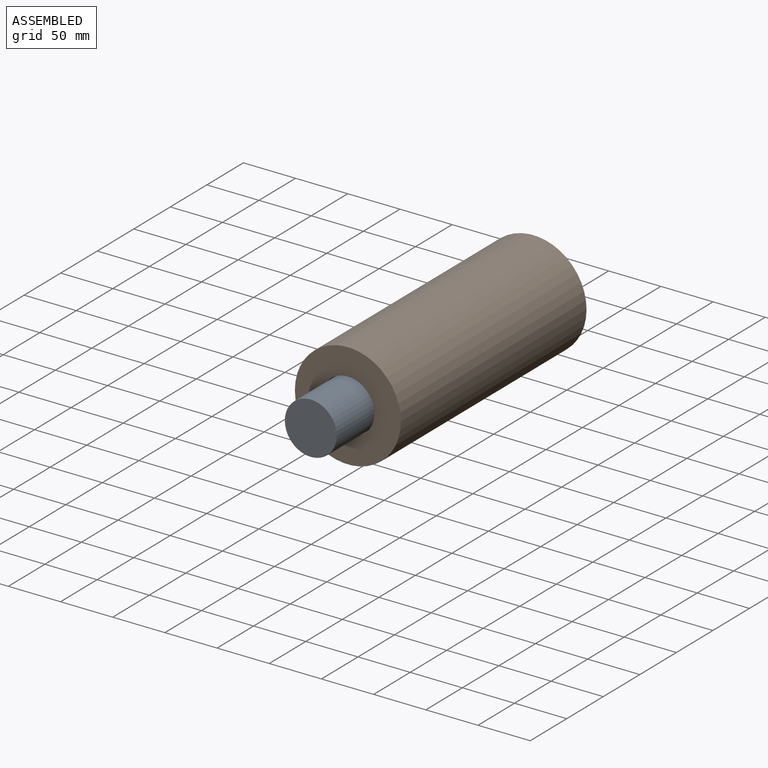
[diagram: assembled view]
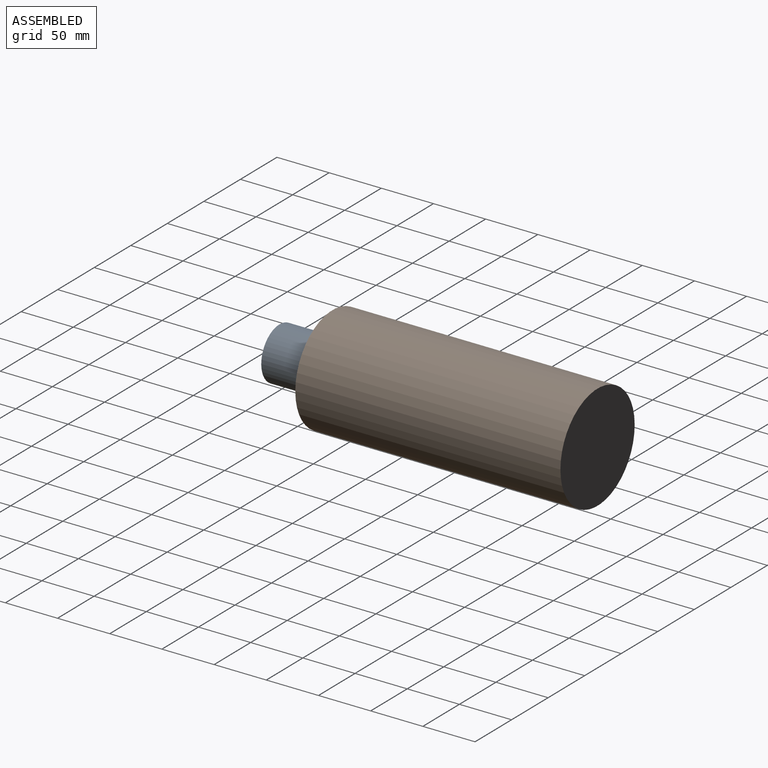
[diagram: assembled view, second angle]
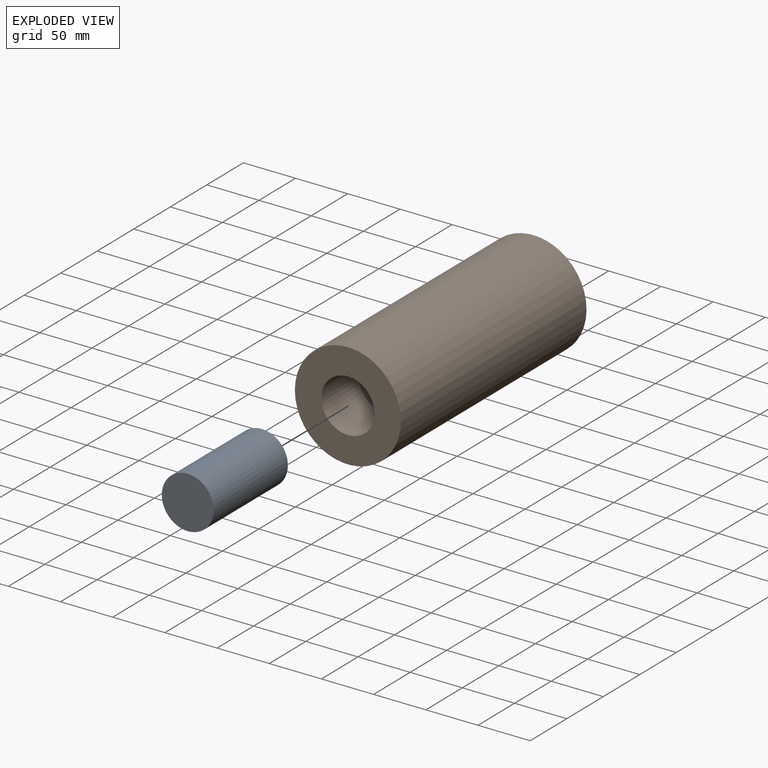
[diagram: exploded view]
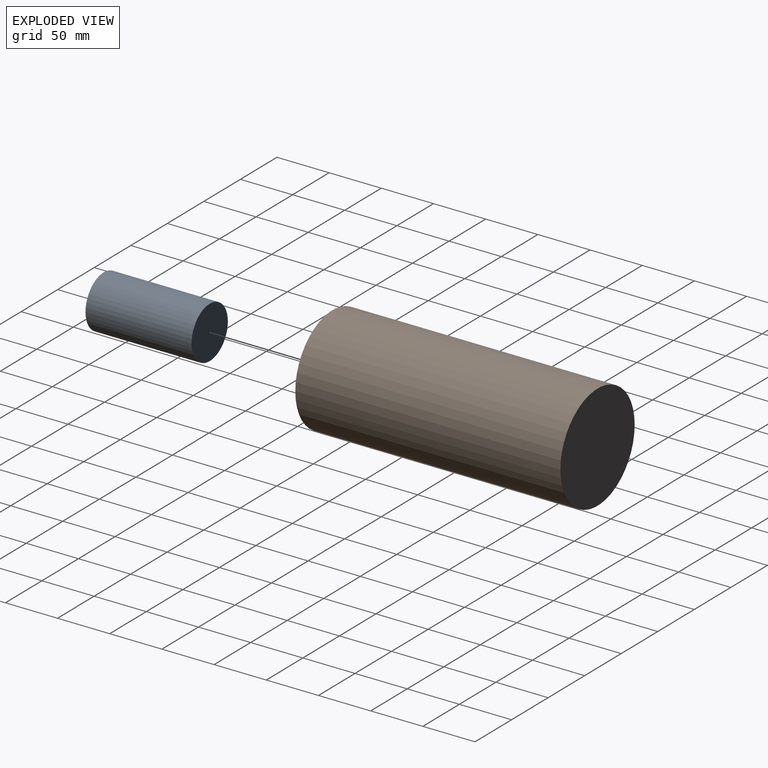
[diagram: exploded view, second angle]
ASSEMBLY  parts=2 mates=3
PART A: 3 faces, bbox 49.7x101.6x49.7 mm
  f0: cylinder r=24.86mm len=101.6mm, axis (0,1,0), area 15868.3mm2, adj f1,f2
  f1: plane 49.72x49.72mm, normal (0,-1,0), area 1941.2mm2, adj f0
  f2: plane 49.72x49.72mm, normal (0,1,0), area 1941.2mm2, adj f0
PART B: 5 faces, bbox 101.6x254x101.6 mm
  f0: cylinder r=50.8mm len=254mm, axis (0,1,0), area 81073.2mm2, adj f1,f2
  f1: plane 101.6x101.6mm, normal (0,-1,0), area 6080.5mm2, adj f0,f3
  f2: plane 101.6x101.6mm, normal (0,1,0), area 8107.3mm2, adj f0
  f3: cylinder r=25.4mm len=50.8mm, axis (0,-1,0), area 8107.3mm2, adj f1,f4
  f4: plane 50.8x50.8mm, normal (0,-1,0), area 2026.8mm2, adj f3
PLACE A t=(-55.4,-519.66,77.2)mm
PLACE B t=(516.1,-316.46,-202.2)mm
MATE slider B.f0 <-> A.f0  axis (0,-1,0) through (-55.4,-570.46,77.2)mm
MATE slider A.f0 <-> B.f0  axis (0,1,0) through (-55.4,-519.66,77.2)mm
MATE fastened B.f0 <-> A.f0  axis (0,-1,0) through (-55.4,-570.46,77.2)mm
